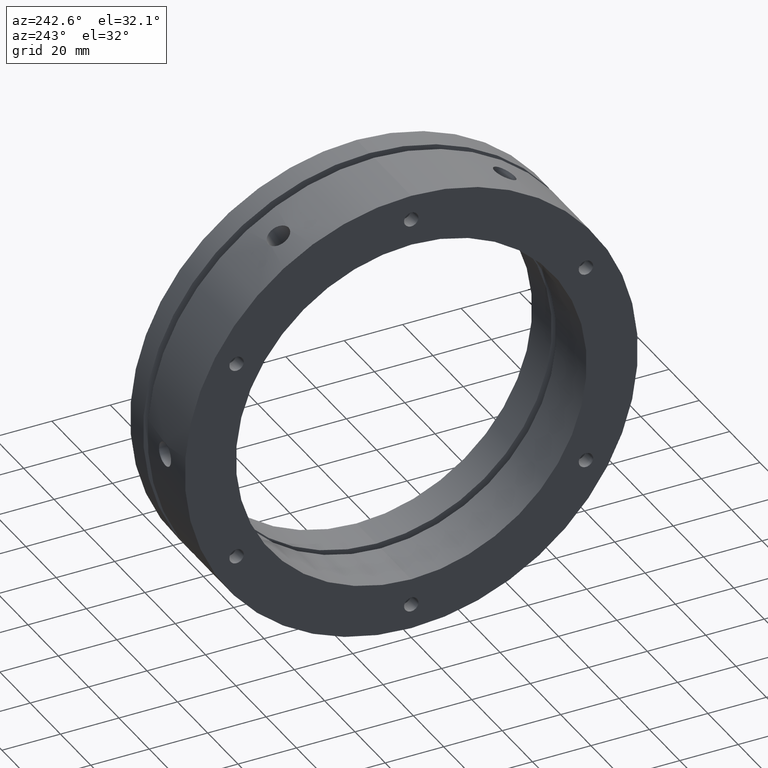
[diagram: clean part render]
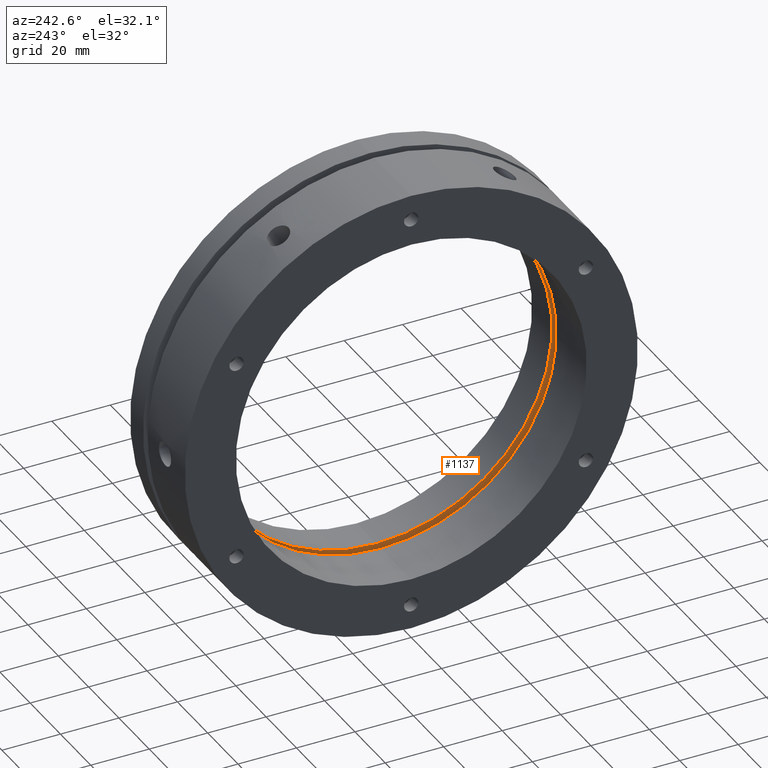
[diagram: same view with one face highlighted and labeled with its STEP entity id]
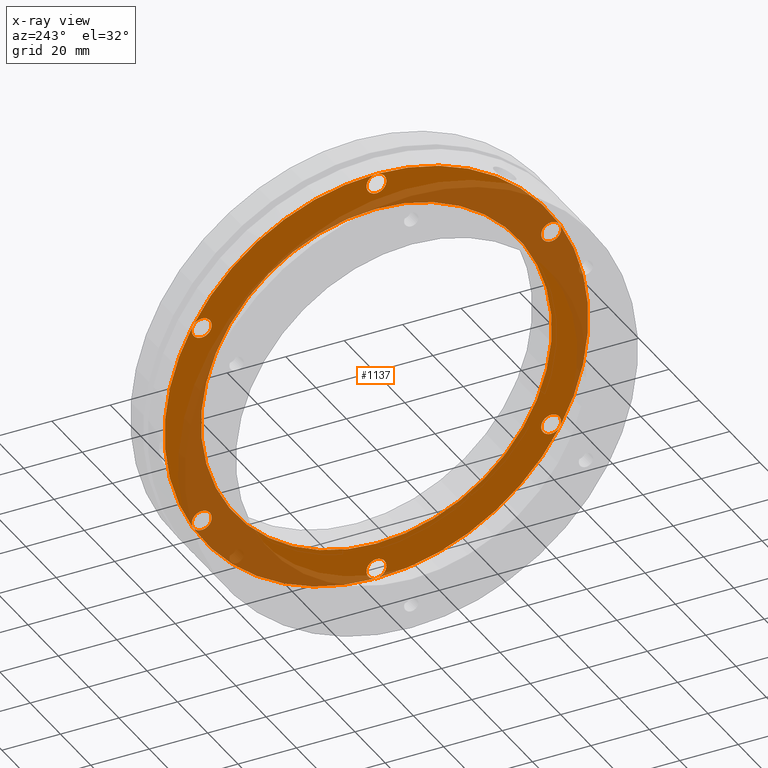
[diagram: x-ray of the same camera — body ghosted, the highlighted face saturated]
A machine part, auxiliary view. The second image highlights one B-rep face of the part: STEP entity #1137.
The next image is the same camera in x-ray: the body ghosted, the highlighted face saturated — about 41% of this face is hidden behind the body in this view.
In plain terms, the highlighted planar face has unit normal (1, 0, 0).
Its self-contained STEP definition (entity closure, byte-faithful):
#40 = CIRCLE ( 'NONE', #3959, 3.400000000000000400 ) ;
#143 = CIRCLE ( 'NONE', #3965, 3.400000000000000400 ) ;
#434 = EDGE_CURVE ( 'NONE', #3717, #3595, #4255, .T. ) ;
#437 = EDGE_CURVE ( 'NONE', #3698, #3705, #4248, .T. ) ;
#441 = EDGE_CURVE ( 'NONE', #3732, #3661, #4245, .T. ) ;
#444 = EDGE_CURVE ( 'NONE', #3748, #3657, #4230, .T. ) ;
#445 = EDGE_CURVE ( 'NONE', #3736, #3669, #4229, .T. ) ;
#446 = EDGE_CURVE ( 'NONE', #3595, #3717, #4227, .T. ) ;
#447 = EDGE_CURVE ( 'NONE', #3705, #3698, #4225, .T. ) ;
#518 = EDGE_CURVE ( 'NONE', #3661, #3732, #143, .T. ) ;
#544 = EDGE_CURVE ( 'NONE', #3657, #3748, #40, .T. ) ;
#581 = CARTESIAN_POINT ( 'NONE',  ( 22.99999999999998900, -4.440891999999999900E-015, -69.00000000000000000 ) ) ;
#584 = DIRECTION ( 'NONE',  ( 1.000000000000000000, 0.0000000000000000000, 0.0000000000000000000 ) ) ;
#586 = DIRECTION ( 'NONE',  ( 0.0000000000000000000, 0.0000000000000000000, -1.000000000000000000 ) ) ;
#601 = CARTESIAN_POINT ( 'NONE',  ( 22.99999999999998900, 59.75575286112625400, -34.50000000000003600 ) ) ;
#602 = DIRECTION ( 'NONE',  ( 1.000000000000000000, 0.0000000000000000000, 0.0000000000000000000 ) ) ;
#603 = DIRECTION ( 'NONE',  ( 0.0000000000000000000, 0.0000000000000000000, -1.000000000000000000 ) ) ;
#608 = CARTESIAN_POINT ( 'NONE',  ( 22.99999999999998900, 0.0000000000000000000, 69.00000000000000000 ) ) ;
#609 = DIRECTION ( 'NONE',  ( 1.000000000000000000, 0.0000000000000000000, 0.0000000000000000000 ) ) ;
#610 = DIRECTION ( 'NONE',  ( 0.0000000000000000000, 0.0000000000000000000, -1.000000000000000000 ) ) ;
#617 = CARTESIAN_POINT ( 'NONE',  ( 22.99999999999998900, -59.75575286112626800, 34.50000000000001400 ) ) ;
#618 = DIRECTION ( 'NONE',  ( 1.000000000000000000, 0.0000000000000000000, 0.0000000000000000000 ) ) ;
#619 = DIRECTION ( 'NONE',  ( 0.0000000000000000000, 0.0000000000000000000, -1.000000000000000000 ) ) ;
#620 = CARTESIAN_POINT ( 'NONE',  ( 22.99999999999998900, -59.75575286112628200, -34.49999999999998600 ) ) ;
#621 = DIRECTION ( 'NONE',  ( 1.000000000000000000, 0.0000000000000000000, 0.0000000000000000000 ) ) ;
#622 = DIRECTION ( 'NONE',  ( 0.0000000000000000000, 0.0000000000000000000, -1.000000000000000000 ) ) ;
#623 = CARTESIAN_POINT ( 'NONE',  ( 22.99999999999998900, -4.440891999999999900E-015, -69.00000000000000000 ) ) ;
#624 = DIRECTION ( 'NONE',  ( 1.000000000000000000, 0.0000000000000000000, 0.0000000000000000000 ) ) ;
#625 = DIRECTION ( 'NONE',  ( 0.0000000000000000000, 0.0000000000000000000, -1.000000000000000000 ) ) ;
#627 = CARTESIAN_POINT ( 'NONE',  ( 22.99999999999998900, 59.75575286112625400, -34.50000000000003600 ) ) ;
#628 = DIRECTION ( 'NONE',  ( 1.000000000000000000, 0.0000000000000000000, 0.0000000000000000000 ) ) ;
#629 = DIRECTION ( 'NONE',  ( 0.0000000000000000000, 0.0000000000000000000, -1.000000000000000000 ) ) ;
#818 = CARTESIAN_POINT ( 'NONE',  ( 22.99999999999998900, 0.0000000000000000000, 69.00000000000000000 ) ) ;
#819 = DIRECTION ( 'NONE',  ( 1.000000000000000000, 0.0000000000000000000, 0.0000000000000000000 ) ) ;
#820 = DIRECTION ( 'NONE',  ( 0.0000000000000000000, 0.0000000000000000000, -1.000000000000000000 ) ) ;
#874 = CARTESIAN_POINT ( 'NONE',  ( 22.99999999999998900, -59.75575286112626800, 34.50000000000001400 ) ) ;
#875 = DIRECTION ( 'NONE',  ( 1.000000000000000000, 0.0000000000000000000, 0.0000000000000000000 ) ) ;
#876 = DIRECTION ( 'NONE',  ( 0.0000000000000000000, 0.0000000000000000000, -1.000000000000000000 ) ) ;
#1137 = ADVANCED_FACE ( 'NONE', ( #1325, #1333, #1329, #1327, #1331, #1334, #1335, #1336 ), #2022, .F. ) ;
#1214 = AXIS2_PLACEMENT_3D ( 'NONE', #2613, #2614, #2615 ) ;
#1228 = AXIS2_PLACEMENT_3D ( 'NONE', #4453, #4454, #4455 ) ;
#1235 = AXIS2_PLACEMENT_3D ( 'NONE', #2778, #2779, #2780 ) ;
#1239 = AXIS2_PLACEMENT_3D ( 'NONE', #4585, #4586, #4587 ) ;
#1250 = AXIS2_PLACEMENT_3D ( 'NONE', #4568, #4569, #4570 ) ;
#1267 = AXIS2_PLACEMENT_3D ( 'NONE', #4540, #4541, #4542 ) ;
#1325 = FACE_BOUND ( 'NONE', #3143, .T. ) ;
#1327 = FACE_BOUND ( 'NONE', #3133, .T. ) ;
#1329 = FACE_BOUND ( 'NONE', #3153, .T. ) ;
#1331 = FACE_BOUND ( 'NONE', #3142, .T. ) ;
#1333 = FACE_BOUND ( 'NONE', #3134, .T. ) ;
#1334 = FACE_BOUND ( 'NONE', #3132, .T. ) ;
#1335 = FACE_BOUND ( 'NONE', #3146, .T. ) ;
#1336 = FACE_OUTER_BOUND ( 'NONE', #3131, .T. ) ;
#1431 = CIRCLE ( 'NONE', #3301, 3.400000000000000400 ) ;
#1552 = CIRCLE ( 'NONE', #1214, 72.50000000000000000 ) ;
#1577 = CIRCLE ( 'NONE', #1235, 3.400000000000000400 ) ;
#1594 = CIRCLE ( 'NONE', #1228, 60.00000000000000000 ) ;
#1641 = CIRCLE ( 'NONE', #1267, 60.00000000000000000 ) ;
#1655 = CIRCLE ( 'NONE', #1250, 3.400000000000000400 ) ;
#1660 = CIRCLE ( 'NONE', #1239, 72.50000000000000000 ) ;
#2019 = DIRECTION ( 'NONE',  ( 1.000000000000000000, -0.0000000000000000000, 0.0000000000000000000 ) ) ;
#2021 = CARTESIAN_POINT ( 'NONE',  ( 22.99999999999998900, 36.25000000000000000, 0.0000000000000000000 ) ) ;
#2022 = PLANE ( 'NONE',  #3320 ) ;
#2024 = DIRECTION ( 'NONE',  ( 0.0000000000000000000, 0.0000000000000000000, -1.000000000000000000 ) ) ;
#2131 = CARTESIAN_POINT ( 'NONE',  ( 22.99999999999998900, -59.75575286112628200, -34.49999999999998600 ) ) ;
#2132 = DIRECTION ( 'NONE',  ( 1.000000000000000000, 0.0000000000000000000, 0.0000000000000000000 ) ) ;
#2133 = DIRECTION ( 'NONE',  ( 0.0000000000000000000, 0.0000000000000000000, -1.000000000000000000 ) ) ;
#2613 = CARTESIAN_POINT ( 'NONE',  ( 22.99999999999997500, 0.0000000000000000000, 0.0000000000000000000 ) ) ;
#2614 = DIRECTION ( 'NONE',  ( 1.000000000000000000, -0.0000000000000000000, -0.0000000000000000000 ) ) ;
#2615 = DIRECTION ( 'NONE',  ( 0.0000000000000000000, 0.0000000000000000000, 1.000000000000000000 ) ) ;
#2778 = CARTESIAN_POINT ( 'NONE',  ( 22.99999999999998900, 59.75575286112629700, 34.49999999999995700 ) ) ;
#2779 = DIRECTION ( 'NONE',  ( 1.000000000000000000, 0.0000000000000000000, 0.0000000000000000000 ) ) ;
#2780 = DIRECTION ( 'NONE',  ( 0.0000000000000000000, 0.0000000000000000000, -1.000000000000000000 ) ) ;
#2800 = CARTESIAN_POINT ( 'NONE',  ( 22.99999999999998900, 0.0000000000000000000, -60.00000000000000000 ) ) ;
#2803 = CARTESIAN_POINT ( 'NONE',  ( 22.99999999999998900, -4.440891999999999900E-015, -72.40000000000000600 ) ) ;
#2863 = CARTESIAN_POINT ( 'NONE',  ( 22.99999999999998900, -59.75575286112626800, 37.90000000000002000 ) ) ;
#2867 = CARTESIAN_POINT ( 'NONE',  ( 22.99999999999998900, 4.163799117101000100E-016, 72.40000000000000600 ) ) ;
#2875 = CARTESIAN_POINT ( 'NONE',  ( 22.99999999999998900, -59.75575286112628200, -31.09999999999998700 ) ) ;
#2887 = CARTESIAN_POINT ( 'NONE',  ( 22.99999999999998900, 7.347880794884118400E-015, 60.00000000000000000 ) ) ;
#2891 = CARTESIAN_POINT ( 'NONE',  ( 22.99999999999997500, 0.0000000000000000000, 72.50000000000000000 ) ) ;
#2903 = CARTESIAN_POINT ( 'NONE',  ( 22.99999999999998900, 59.75575286112629700, 31.09999999999995500 ) ) ;
#2904 = CARTESIAN_POINT ( 'NONE',  ( 22.99999999999998900, 59.75575286112625400, -31.10000000000003700 ) ) ;
#2908 = CARTESIAN_POINT ( 'NONE',  ( 22.99999999999998900, 59.75575286112629700, 37.89999999999995600 ) ) ;
#2911 = CARTESIAN_POINT ( 'NONE',  ( 22.99999999999998900, 59.75575286112625400, -37.90000000000004100 ) ) ;
#2918 = CARTESIAN_POINT ( 'NONE',  ( 22.99999999999997500, 8.878689293818309300E-015, -72.50000000000000000 ) ) ;
#2923 = CARTESIAN_POINT ( 'NONE',  ( 22.99999999999998900, -4.024512088289900200E-015, -65.60000000000000900 ) ) ;
#2936 = EDGE_CURVE ( 'NONE', #3669, #3736, #1431, .T. ) ;
#3019 = EDGE_CURVE ( 'NONE', #3685, #3712, #1552, .T. ) ;
#3044 = EDGE_CURVE ( 'NONE', #3702, #3697, #1577, .T. ) ;
#3131 = EDGE_LOOP ( 'NONE', ( #4085, #4084 ) ) ;
#3132 = EDGE_LOOP ( 'NONE', ( #4099, #4100 ) ) ;
#3133 = EDGE_LOOP ( 'NONE', ( #4095, #4096 ) ) ;
#3134 = EDGE_LOOP ( 'NONE', ( #4103, #4081 ) ) ;
#3142 = EDGE_LOOP ( 'NONE', ( #4079, #4098 ) ) ;
#3143 = EDGE_LOOP ( 'NONE', ( #4109, #4114 ) ) ;
#3146 = EDGE_LOOP ( 'NONE', ( #4078, #4094 ) ) ;
#3153 = EDGE_LOOP ( 'NONE', ( #4080, #4104 ) ) ;
#3301 = AXIS2_PLACEMENT_3D ( 'NONE', #2131, #2132, #2133 ) ;
#3320 = AXIS2_PLACEMENT_3D ( 'NONE', #2021, #2019, #2024 ) ;
#3590 = VERTEX_POINT ( 'NONE', #2800 ) ;
#3595 = VERTEX_POINT ( 'NONE', #2803 ) ;
#3657 = VERTEX_POINT ( 'NONE', #2863 ) ;
#3661 = VERTEX_POINT ( 'NONE', #2867 ) ;
#3669 = VERTEX_POINT ( 'NONE', #2875 ) ;
#3681 = VERTEX_POINT ( 'NONE', #2887 ) ;
#3685 = VERTEX_POINT ( 'NONE', #2891 ) ;
#3697 = VERTEX_POINT ( 'NONE', #2903 ) ;
#3698 = VERTEX_POINT ( 'NONE', #2904 ) ;
#3702 = VERTEX_POINT ( 'NONE', #2908 ) ;
#3705 = VERTEX_POINT ( 'NONE', #2911 ) ;
#3712 = VERTEX_POINT ( 'NONE', #2918 ) ;
#3717 = VERTEX_POINT ( 'NONE', #2923 ) ;
#3732 = VERTEX_POINT ( 'NONE', #4369 ) ;
#3736 = VERTEX_POINT ( 'NONE', #4373 ) ;
#3748 = VERTEX_POINT ( 'NONE', #4385 ) ;
#3791 = EDGE_CURVE ( 'NONE', #3681, #3590, #1594, .T. ) ;
#3825 = EDGE_CURVE ( 'NONE', #3590, #3681, #1641, .T. ) ;
#3853 = EDGE_CURVE ( 'NONE', #3697, #3702, #1655, .T. ) ;
#3858 = EDGE_CURVE ( 'NONE', #3712, #3685, #1660, .T. ) ;
#3925 = AXIS2_PLACEMENT_3D ( 'NONE', #581, #584, #586 ) ;
#3929 = AXIS2_PLACEMENT_3D ( 'NONE', #601, #602, #603 ) ;
#3933 = AXIS2_PLACEMENT_3D ( 'NONE', #608, #609, #610 ) ;
#3959 = AXIS2_PLACEMENT_3D ( 'NONE', #874, #875, #876 ) ;
#3965 = AXIS2_PLACEMENT_3D ( 'NONE', #818, #819, #820 ) ;
#4004 = AXIS2_PLACEMENT_3D ( 'NONE', #617, #618, #619 ) ;
#4008 = AXIS2_PLACEMENT_3D ( 'NONE', #620, #621, #622 ) ;
#4010 = AXIS2_PLACEMENT_3D ( 'NONE', #623, #624, #625 ) ;
#4012 = AXIS2_PLACEMENT_3D ( 'NONE', #627, #628, #629 ) ;
#4078 = ORIENTED_EDGE ( 'NONE', *, *, #3853, .T. ) ;
#4079 = ORIENTED_EDGE ( 'NONE', *, *, #446, .T. ) ;
#4080 = ORIENTED_EDGE ( 'NONE', *, *, #444, .T. ) ;
#4081 = ORIENTED_EDGE ( 'NONE', *, *, #518, .T. ) ;
#4084 = ORIENTED_EDGE ( 'NONE', *, *, #3858, .F. ) ;
#4085 = ORIENTED_EDGE ( 'NONE', *, *, #3019, .F. ) ;
#4094 = ORIENTED_EDGE ( 'NONE', *, *, #3044, .T. ) ;
#4095 = ORIENTED_EDGE ( 'NONE', *, *, #445, .T. ) ;
#4096 = ORIENTED_EDGE ( 'NONE', *, *, #2936, .T. ) ;
#4098 = ORIENTED_EDGE ( 'NONE', *, *, #434, .T. ) ;
#4099 = ORIENTED_EDGE ( 'NONE', *, *, #447, .T. ) ;
#4100 = ORIENTED_EDGE ( 'NONE', *, *, #437, .T. ) ;
#4103 = ORIENTED_EDGE ( 'NONE', *, *, #441, .T. ) ;
#4104 = ORIENTED_EDGE ( 'NONE', *, *, #544, .T. ) ;
#4109 = ORIENTED_EDGE ( 'NONE', *, *, #3825, .F. ) ;
#4114 = ORIENTED_EDGE ( 'NONE', *, *, #3791, .F. ) ;
#4225 = CIRCLE ( 'NONE', #4012, 3.400000000000000400 ) ;
#4227 = CIRCLE ( 'NONE', #4010, 3.400000000000000400 ) ;
#4229 = CIRCLE ( 'NONE', #4008, 3.400000000000000400 ) ;
#4230 = CIRCLE ( 'NONE', #4004, 3.400000000000000400 ) ;
#4245 = CIRCLE ( 'NONE', #3933, 3.400000000000000400 ) ;
#4248 = CIRCLE ( 'NONE', #3929, 3.400000000000000400 ) ;
#4255 = CIRCLE ( 'NONE', #3925, 3.400000000000000400 ) ;
#4369 = CARTESIAN_POINT ( 'NONE',  ( 22.99999999999998900, 0.0000000000000000000, 65.60000000000000900 ) ) ;
#4373 = CARTESIAN_POINT ( 'NONE',  ( 22.99999999999998900, -59.75575286112628200, -37.89999999999999100 ) ) ;
#4385 = CARTESIAN_POINT ( 'NONE',  ( 22.99999999999998900, -59.75575286112626800, 31.10000000000001600 ) ) ;
#4453 = CARTESIAN_POINT ( 'NONE',  ( 22.99999999999998900, 0.0000000000000000000, 0.0000000000000000000 ) ) ;
#4454 = DIRECTION ( 'NONE',  ( -1.000000000000000000, -0.0000000000000000000, -0.0000000000000000000 ) ) ;
#4455 = DIRECTION ( 'NONE',  ( 0.0000000000000000000, 0.0000000000000000000, -1.000000000000000000 ) ) ;
#4540 = CARTESIAN_POINT ( 'NONE',  ( 22.99999999999998900, 0.0000000000000000000, 0.0000000000000000000 ) ) ;
#4541 = DIRECTION ( 'NONE',  ( -1.000000000000000000, -0.0000000000000000000, -0.0000000000000000000 ) ) ;
#4542 = DIRECTION ( 'NONE',  ( 0.0000000000000000000, 0.0000000000000000000, -1.000000000000000000 ) ) ;
#4568 = CARTESIAN_POINT ( 'NONE',  ( 22.99999999999998900, 59.75575286112629700, 34.49999999999995700 ) ) ;
#4569 = DIRECTION ( 'NONE',  ( 1.000000000000000000, 0.0000000000000000000, 0.0000000000000000000 ) ) ;
#4570 = DIRECTION ( 'NONE',  ( 0.0000000000000000000, 0.0000000000000000000, -1.000000000000000000 ) ) ;
#4585 = CARTESIAN_POINT ( 'NONE',  ( 22.99999999999997500, 0.0000000000000000000, 0.0000000000000000000 ) ) ;
#4586 = DIRECTION ( 'NONE',  ( 1.000000000000000000, -0.0000000000000000000, -0.0000000000000000000 ) ) ;
#4587 = DIRECTION ( 'NONE',  ( 0.0000000000000000000, 0.0000000000000000000, 1.000000000000000000 ) ) ;